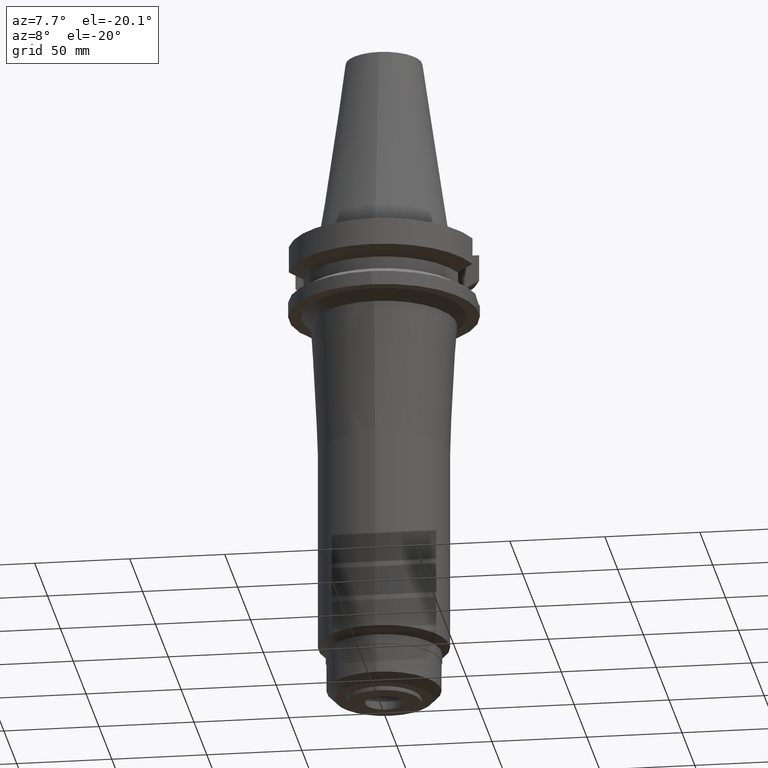
[diagram: clean part render]
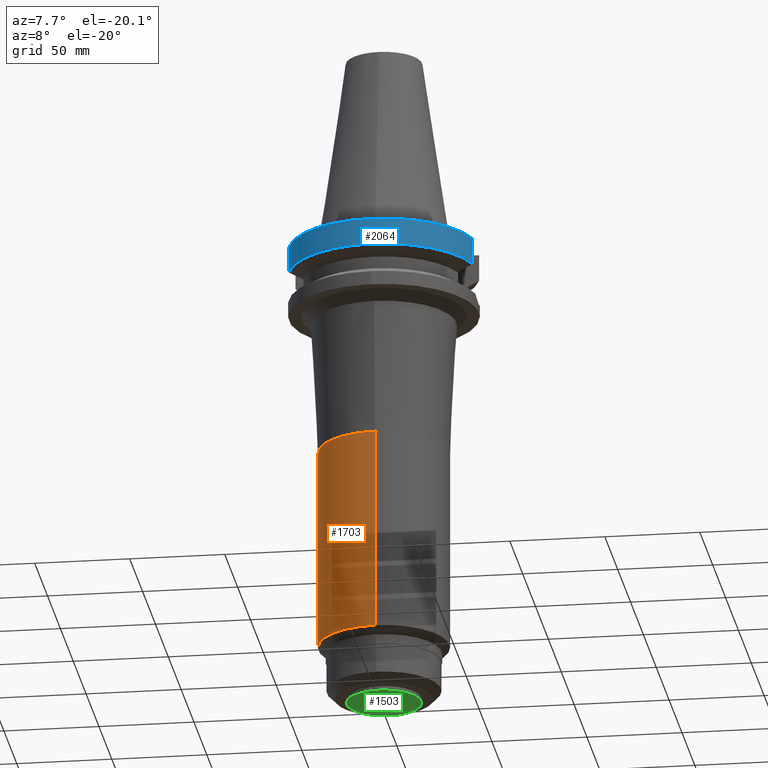
[diagram: same view with three faces highlighted in distinct colors, each labeled with its STEP entity id]
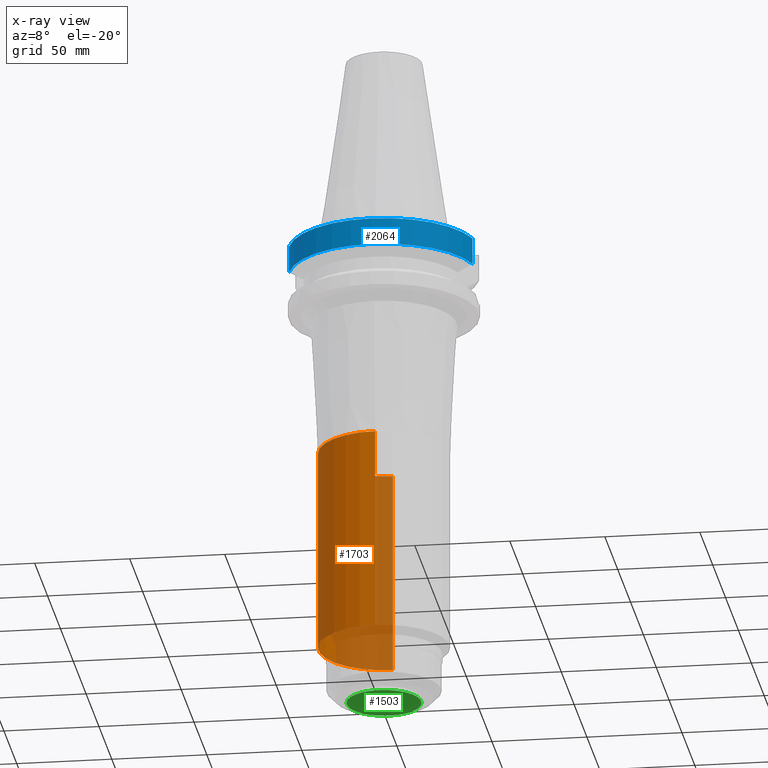
[diagram: x-ray of the same camera — body ghosted, the three highlighted faces saturated]
A machine part, auxiliary view with three faces highlighted in distinct colors.
The next image is the same camera in x-ray (body ghosted, the three faces saturated) — at least one of them is partly hidden behind the body in this view.
Their STEP definitions:

[orange] entity #1703 — the highlighted cylindrical surface (partial cylindrical patch) has radius 34.5 mm, axis along (0, 0, -1).
#368=CARTESIAN_POINT('',(0.E0,-1.512175376605E-14,-2.217E2));
#369=DIRECTION('',(0.E0,0.E0,1.E0));
#370=DIRECTION('',(0.E0,1.E0,0.E0));
#371=AXIS2_PLACEMENT_3D('',#368,#369,#370);
#414=DIRECTION('',(0.E0,-5.752955112190E-14,-1.E0));
#415=VECTOR('',#414,1.077E2);
#416=CARTESIAN_POINT('',(0.E0,3.45E1,-1.14E2));
#417=LINE('',#416,#415);
#421=DIRECTION('',(0.E0,5.739760261015E-14,-1.E0));
#422=VECTOR('',#421,1.077E2);
#423=CARTESIAN_POINT('',(0.E0,-3.45E1,-1.14E2));
#424=LINE('',#423,#422);
#435=CARTESIAN_POINT('',(0.E0,0.E0,-1.14E2));
#436=DIRECTION('',(0.E0,0.E0,-1.E0));
#437=DIRECTION('',(0.E0,-1.E0,0.E0));
#438=AXIS2_PLACEMENT_3D('',#435,#436,#437);
#1189=CARTESIAN_POINT('',(0.E0,3.449999999999E1,-2.217E2));
#1190=VERTEX_POINT('',#1189);
#1191=CARTESIAN_POINT('',(0.E0,-3.449999999998E1,-2.217E2));
#1192=VERTEX_POINT('',#1191);
#1193=CARTESIAN_POINT('',(0.E0,3.45E1,-1.14E2));
#1194=VERTEX_POINT('',#1193);
#1195=CARTESIAN_POINT('',(0.E0,-3.45E1,-1.14E2));
#1196=VERTEX_POINT('',#1195);
#1691=CARTESIAN_POINT('',(0.E0,2.688222188808E-14,1.1951E2));
#1692=DIRECTION('',(0.E0,0.E0,-1.E0));
#1693=DIRECTION('',(0.E0,-1.E0,0.E0));
#1694=AXIS2_PLACEMENT_3D('',#1691,#1692,#1693);
#1695=CYLINDRICAL_SURFACE('',#1694,3.45E1);
#1696=ORIENTED_EDGE('',*,*,#1681,.F.);
#1698=ORIENTED_EDGE('',*,*,#1697,.F.);
#1699=ORIENTED_EDGE('',*,*,#1684,.T.);
#1700=ORIENTED_EDGE('',*,*,#1655,.F.);
#1701=EDGE_LOOP('',(#1696,#1698,#1699,#1700));
#1702=FACE_OUTER_BOUND('',#1701,.F.);
#372=CIRCLE('',#371,3.449999999998E1);
#439=CIRCLE('',#438,3.45E1);
#1655=EDGE_CURVE('',#1190,#1192,#372,.T.);
#1681=EDGE_CURVE('',#1194,#1190,#417,.T.);
#1684=EDGE_CURVE('',#1196,#1192,#424,.T.);
#1697=EDGE_CURVE('',#1196,#1194,#439,.T.);
#1703=ADVANCED_FACE('',(#1702),#1695,.T.);

[blue] entity #2064 — the highlighted cylindrical surface (partial cylindrical patch) has radius 50 mm, axis along (0, 0, -1).
#824=CARTESIAN_POINT('',(0.E0,2.688222188808E-14,-1.5E0));
#825=DIRECTION('',(0.E0,0.E0,-1.E0));
#826=DIRECTION('',(9.664114030784E-1,-2.57E-1,0.E0));
#827=AXIS2_PLACEMENT_3D('',#824,#825,#826);
#832=CARTESIAN_POINT('',(0.E0,2.688222188808E-14,-1.5E0));
#833=DIRECTION('',(0.E0,0.E0,-1.E0));
#834=DIRECTION('',(0.E0,-1.E0,0.E0));
#835=AXIS2_PLACEMENT_3D('',#832,#833,#834);
#937=CARTESIAN_POINT('',(0.E0,1.006319759054E-14,-1.566269223573E1));
#938=DIRECTION('',(0.E0,0.E0,1.E0));
#939=DIRECTION('',(-9.664114030784E-1,-2.57E-1,0.E0));
#940=AXIS2_PLACEMENT_3D('',#937,#938,#939);
#945=CARTESIAN_POINT('',(0.E0,1.006319759054E-14,-1.566269223573E1));
#946=DIRECTION('',(0.E0,0.E0,1.E0));
#947=DIRECTION('',(0.E0,-1.E0,0.E0));
#948=AXIS2_PLACEMENT_3D('',#945,#946,#947);
#969=DIRECTION('',(-7.242826062941E-8,2.723558434546E-7,1.E0));
#970=VECTOR('',#969,1.416265768251E1);
#971=CARTESIAN_POINT('',(-4.832056912814E1,-1.285000385728E1,
-1.566265768251E1));
#972=LINE('',#971,#970);
#976=DIRECTION('',(-7.245256712559E-8,-2.724472421616E-7,-1.E0));
#977=VECTOR('',#976,1.416265767091E1);
#978=CARTESIAN_POINT('',(4.832057015392E1,-1.285E1,-1.5E0));
#979=LINE('',#978,#977);
#1258=CARTESIAN_POINT('',(-4.832057015392E1,-1.285E1,-1.5E0));
#1259=VERTEX_POINT('',#1258);
#1260=CARTESIAN_POINT('',(-4.832056912814E1,-1.285000385728E1,
-1.566265768251E1));
#1261=VERTEX_POINT('',#1260);
#1274=CARTESIAN_POINT('',(4.832057015392E1,-1.285E1,-1.5E0));
#1275=VERTEX_POINT('',#1274);
#1276=CARTESIAN_POINT('',(1.065814103640E-14,-5.E1,-1.5E0));
#1277=VERTEX_POINT('',#1276);
#1291=CARTESIAN_POINT('',(0.E0,-5.E1,-1.566269223573E1));
#1292=CARTESIAN_POINT('',(4.832057015392E1,-1.285E1,-1.566269223573E1));
#1293=VERTEX_POINT('',#1291);
#1294=VERTEX_POINT('',#1292);
#2050=CARTESIAN_POINT('',(0.E0,2.688222188808E-14,1.1951E2));
#2051=DIRECTION('',(0.E0,0.E0,-1.E0));
#2052=DIRECTION('',(0.E0,-1.E0,0.E0));
#2053=AXIS2_PLACEMENT_3D('',#2050,#2051,#2052);
#2054=CYLINDRICAL_SURFACE('',#2053,5.E1);
#2055=ORIENTED_EDGE('',*,*,#2007,.T.);
#2056=ORIENTED_EDGE('',*,*,#1969,.F.);
#2057=ORIENTED_EDGE('',*,*,#1967,.F.);
#2059=ORIENTED_EDGE('',*,*,#2058,.T.);
#2060=ORIENTED_EDGE('',*,*,#2041,.F.);
#2061=ORIENTED_EDGE('',*,*,#2039,.F.);
#2062=EDGE_LOOP('',(#2055,#2056,#2057,#2059,#2060,#2061));
#2063=FACE_OUTER_BOUND('',#2062,.F.);
#828=CIRCLE('',#827,5.E1);
#836=CIRCLE('',#835,5.E1);
#941=CIRCLE('',#940,5.E1);
#949=CIRCLE('',#948,5.E1);
#1967=EDGE_CURVE('',#1275,#1277,#828,.T.);
#1969=EDGE_CURVE('',#1277,#1259,#836,.T.);
#2007=EDGE_CURVE('',#1261,#1259,#972,.T.);
#2039=EDGE_CURVE('',#1261,#1293,#941,.T.);
#2041=EDGE_CURVE('',#1293,#1294,#949,.T.);
#2058=EDGE_CURVE('',#1275,#1294,#979,.T.);
#2064=ADVANCED_FACE('',(#2063),#2054,.T.);

[green] entity #1503 — the highlighted planar face has unit normal (0, 0, -1).
#200=CARTESIAN_POINT('',(0.E0,2.688222188808E-14,-2.524E2));
#201=DIRECTION('',(0.E0,0.E0,1.E0));
#202=DIRECTION('',(0.E0,-1.E0,0.E0));
#203=AXIS2_PLACEMENT_3D('',#200,#201,#202);
#208=CARTESIAN_POINT('',(0.E0,2.688222188808E-14,-2.524E2));
#209=DIRECTION('',(0.E0,0.E0,1.E0));
#210=DIRECTION('',(0.E0,1.E0,0.E0));
#211=AXIS2_PLACEMENT_3D('',#208,#209,#210);
#216=CARTESIAN_POINT('',(0.E0,2.688222188808E-14,-2.524E2));
#217=DIRECTION('',(0.E0,0.E0,-1.E0));
#218=DIRECTION('',(0.E0,-1.E0,0.E0));
#219=AXIS2_PLACEMENT_3D('',#216,#217,#218);
#224=CARTESIAN_POINT('',(0.E0,2.688222188808E-14,-2.524E2));
#225=DIRECTION('',(0.E0,0.E0,-1.E0));
#226=DIRECTION('',(0.E0,1.E0,0.E0));
#227=AXIS2_PLACEMENT_3D('',#224,#225,#226);
#1157=CARTESIAN_POINT('',(0.E0,1.E1,-2.524E2));
#1158=VERTEX_POINT('',#1157);
#1159=CARTESIAN_POINT('',(0.E0,-1.E1,-2.524E2));
#1160=VERTEX_POINT('',#1159);
#1161=CARTESIAN_POINT('',(0.E0,-1.965E1,-2.524E2));
#1162=CARTESIAN_POINT('',(0.E0,1.965E1,-2.524E2));
#1163=VERTEX_POINT('',#1161);
#1164=VERTEX_POINT('',#1162);
#1488=CARTESIAN_POINT('',(0.E0,-1.866361721901E-14,-2.524E2));
#1489=DIRECTION('',(0.E0,0.E0,-1.E0));
#1490=DIRECTION('',(0.E0,-1.E0,0.E0));
#1491=AXIS2_PLACEMENT_3D('',#1488,#1489,#1490);
#1492=PLANE('',#1491);
#1494=ORIENTED_EDGE('',*,*,#1493,.T.);
#1496=ORIENTED_EDGE('',*,*,#1495,.T.);
#1497=EDGE_LOOP('',(#1494,#1496));
#1498=FACE_OUTER_BOUND('',#1497,.F.);
#1499=ORIENTED_EDGE('',*,*,#1481,.T.);
#1500=ORIENTED_EDGE('',*,*,#1470,.T.);
#1501=EDGE_LOOP('',(#1499,#1500));
#1502=FACE_BOUND('',#1501,.F.);
#204=CIRCLE('',#203,1.965E1);
#212=CIRCLE('',#211,1.965E1);
#220=CIRCLE('',#219,1.E1);
#228=CIRCLE('',#227,1.E1);
#1470=EDGE_CURVE('',#1158,#1160,#228,.T.);
#1481=EDGE_CURVE('',#1160,#1158,#220,.T.);
#1493=EDGE_CURVE('',#1163,#1164,#204,.T.);
#1495=EDGE_CURVE('',#1164,#1163,#212,.T.);
#1503=ADVANCED_FACE('',(#1498,#1502),#1492,.T.);